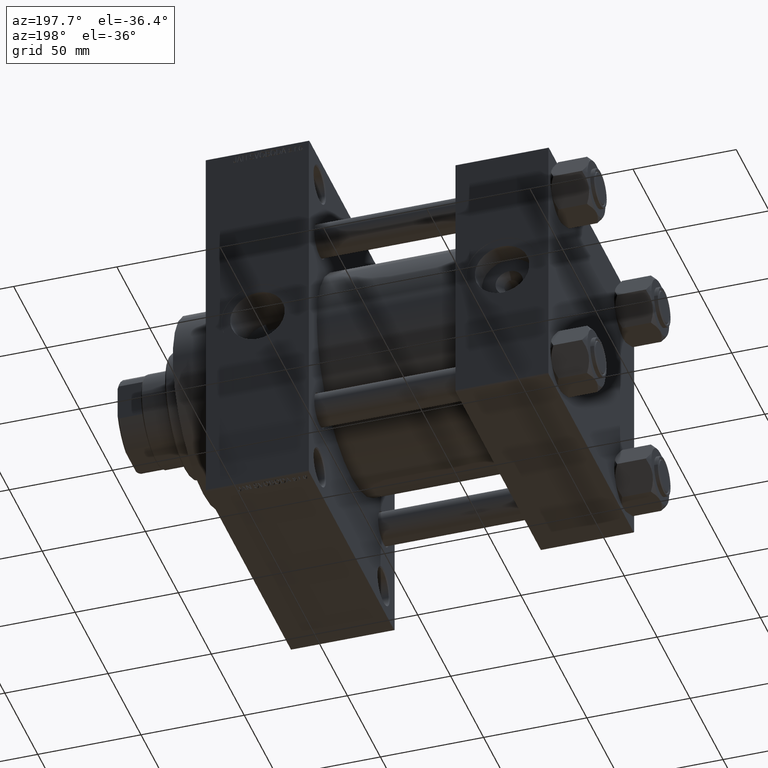
[diagram: clean part render]
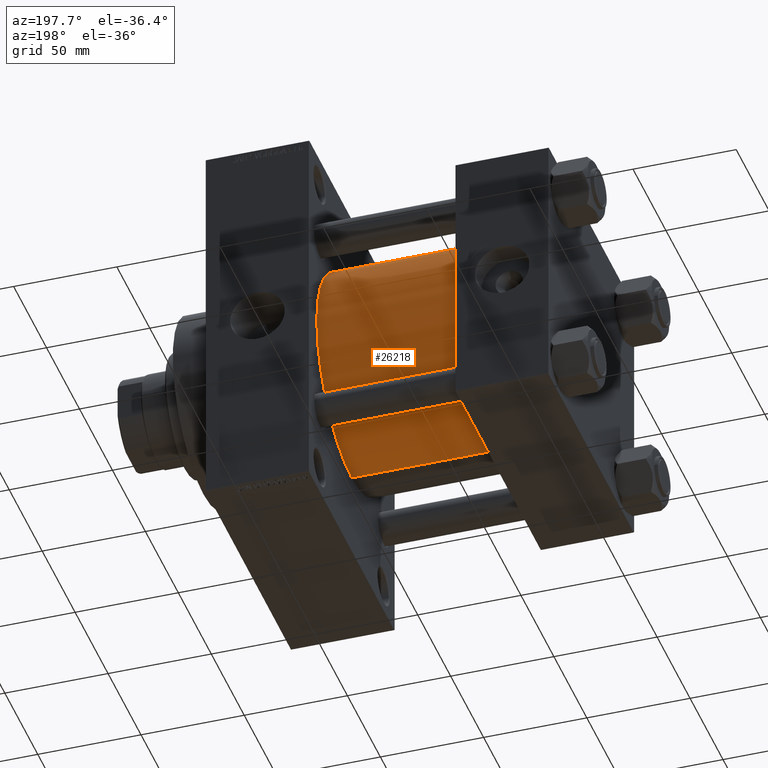
[diagram: same view with one face highlighted and labeled with its STEP entity id]
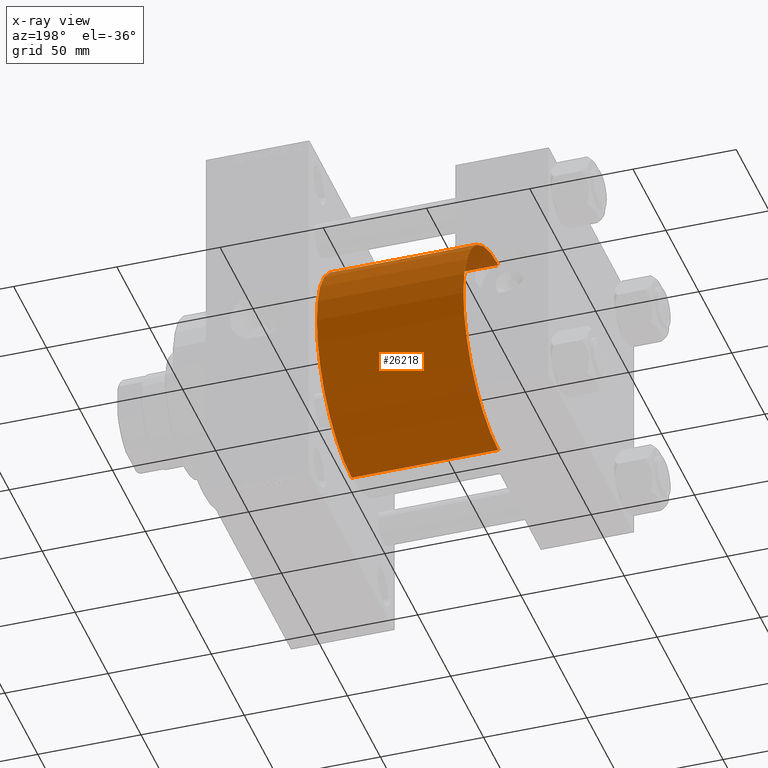
[diagram: x-ray of the same camera — body ghosted, the highlighted face saturated]
A machine part, auxiliary view. The second image highlights one B-rep face of the part: STEP entity #26218.
The next image is the same camera in x-ray: the body ghosted, the highlighted face saturated — about 2% of this face is hidden behind the body in this view.
In plain terms, the highlighted cylindrical surface (partial cylindrical patch) has radius 53 mm, axis along (-1, -0, -0).
Its self-contained STEP definition (entity closure, byte-faithful):
#2149 = VECTOR ( 'NONE', #17108, 1000.000000000000000 ) ;
#2675 = DIRECTION ( 'NONE',  ( 1.000000000000000000, 0.000000000000000000, 0.000000000000000000 ) ) ;
#4313 = VERTEX_POINT ( 'NONE', #10856 ) ;
#6650 = EDGE_CURVE ( 'NONE', #4313, #47131, #10640, .T. ) ;
#6652 = EDGE_CURVE ( 'NONE', #47131, #15026, #21118, .T. ) ;
#7104 = CARTESIAN_POINT ( 'NONE',  ( 115.9999999999999858, 3.888542821515762466E-15, -53.00000000000000711 ) ) ;
#7499 = ORIENTED_EDGE ( 'NONE', *, *, #26721, .F. ) ;
#8114 = CYLINDRICAL_SURFACE ( 'NONE', #19164, 53.00000000000000711 ) ;
#8260 = AXIS2_PLACEMENT_3D ( 'NONE', #41837, #13934, #45375 ) ;
#10640 = LINE ( 'NONE', #7104, #37220 ) ;
#10856 = CARTESIAN_POINT ( 'NONE',  ( 115.9999999999999858, 3.888542821515762466E-15, -53.00000000000000711 ) ) ;
#11647 = DIRECTION ( 'NONE',  ( -1.000000000000000000, -0.000000000000000000, -0.000000000000000000 ) ) ;
#12070 = AXIS2_PLACEMENT_3D ( 'NONE', #37178, #2675, #18043 ) ;
#12912 = CIRCLE ( 'NONE', #12070, 53.00000000000000711 ) ;
#13934 = DIRECTION ( 'NONE',  ( 1.000000000000000000, -0.000000000000000000, 0.000000000000000000 ) ) ;
#15026 = VERTEX_POINT ( 'NONE', #36848 ) ;
#17108 = DIRECTION ( 'NONE',  ( -1.000000000000000000, -0.000000000000000000, -0.000000000000000000 ) ) ;
#18043 = DIRECTION ( 'NONE',  ( 0.000000000000000000, 0.000000000000000000, -1.000000000000000000 ) ) ;
#19164 = AXIS2_PLACEMENT_3D ( 'NONE', #26744, #11647, #20189 ) ;
#20189 = DIRECTION ( 'NONE',  ( 0.000000000000000000, 0.000000000000000000, 1.000000000000000000 ) ) ;
#21118 = CIRCLE ( 'NONE', #8260, 53.00000000000000711 ) ;
#23192 = ORIENTED_EDGE ( 'NONE', *, *, #36854, .F. ) ;
#24857 = ORIENTED_EDGE ( 'NONE', *, *, #6652, .T. ) ;
#26218 = ADVANCED_FACE ( 'NONE', ( #30781 ), #8114, .T. ) ;
#26721 = EDGE_CURVE ( 'NONE', #34426, #15026, #47062, .T. ) ;
#26744 = CARTESIAN_POINT ( 'NONE',  ( 115.9999999999999858, -2.602085213965210642E-15, 0.000000000000000000 ) ) ;
#28533 = ORIENTED_EDGE ( 'NONE', *, *, #6650, .T. ) ;
#30781 = FACE_OUTER_BOUND ( 'NONE', #34203, .T. ) ;
#33576 = CARTESIAN_POINT ( 'NONE',  ( 115.9999999999999858, -2.602085213965210642E-15, 53.00000000000000711 ) ) ;
#34203 = EDGE_LOOP ( 'NONE', ( #23192, #28533, #24857, #7499 ) ) ;
#34426 = VERTEX_POINT ( 'NONE', #33576 ) ;
#36848 = CARTESIAN_POINT ( 'NONE',  ( 45.00000000000000000, -2.602085213965210642E-15, 53.00000000000000711 ) ) ;
#36854 = EDGE_CURVE ( 'NONE', #4313, #34426, #12912, .T. ) ;
#37178 = CARTESIAN_POINT ( 'NONE',  ( 115.9999999999999858, -2.602085213965210642E-15, 0.000000000000000000 ) ) ;
#37220 = VECTOR ( 'NONE', #44630, 1000.000000000000000 ) ;
#39503 = CARTESIAN_POINT ( 'NONE',  ( 115.9999999999999858, -2.602085213965210642E-15, 53.00000000000000711 ) ) ;
#41837 = CARTESIAN_POINT ( 'NONE',  ( 45.00000000000000000, -2.602085213965210642E-15, 0.000000000000000000 ) ) ;
#44630 = DIRECTION ( 'NONE',  ( -1.000000000000000000, -0.000000000000000000, -0.000000000000000000 ) ) ;
#45375 = DIRECTION ( 'NONE',  ( 0.000000000000000000, 0.000000000000000000, 1.000000000000000000 ) ) ;
#47062 = LINE ( 'NONE', #39503, #2149 ) ;
#47131 = VERTEX_POINT ( 'NONE', #47957 ) ;
#47957 = CARTESIAN_POINT ( 'NONE',  ( 45.00000000000000000, 3.888542821515762466E-15, -53.00000000000000711 ) ) ;